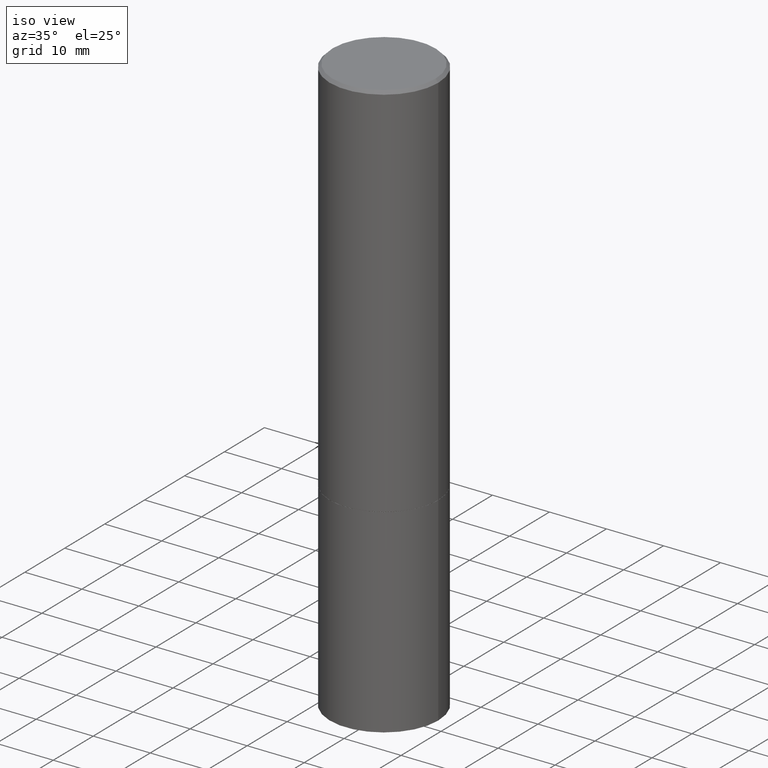
[diagram: clean part render]
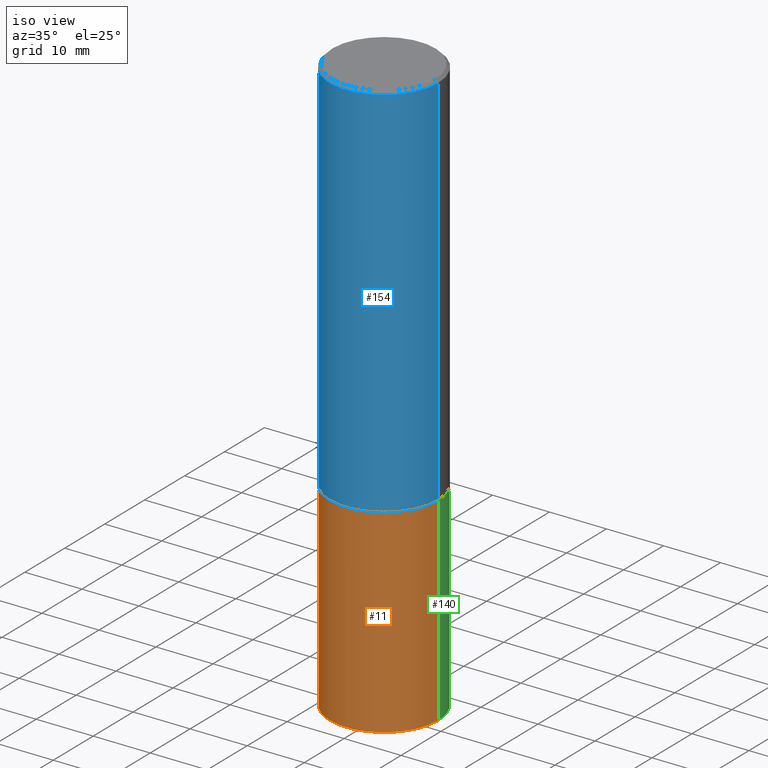
[diagram: same view with three faces highlighted in distinct colors, each labeled with its STEP entity id]
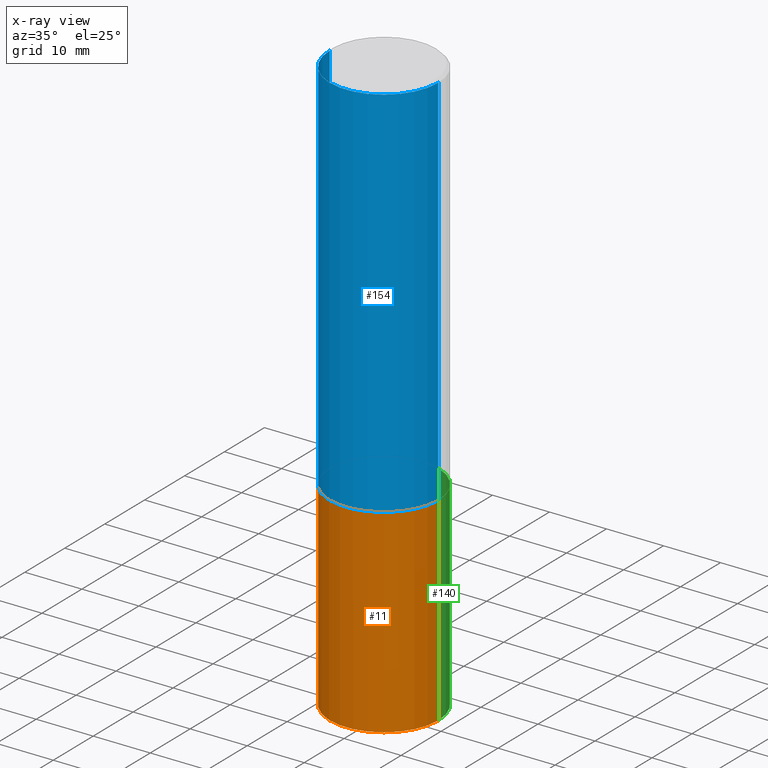
[diagram: x-ray of the same camera — body ghosted, the three highlighted faces saturated]
A machine part, iso view with three faces highlighted in distinct colors.
The next image is the same camera in x-ray (body ghosted, the three faces saturated) — at least one of them is partly hidden behind the body in this view.
Their STEP definitions:

[orange] entity #11 — the highlighted cylindrical surface (partial cylindrical patch) has radius 9.525 mm, axis along (-0, 0, 1).
#2 = ORIENTED_EDGE ( 'NONE', *, *, #313, .T. ) ;
#11 = ADVANCED_FACE ( 'NONE', ( #18 ), #163, .T. ) ;
#14 = CARTESIAN_POINT ( 'NONE',  ( 0.000000000000000000, 0.000000000000000000, 0.000000000000000000 ) ) ;
#18 = FACE_OUTER_BOUND ( 'NONE', #212, .T. ) ;
#37 = ORIENTED_EDGE ( 'NONE', *, *, #283, .T. ) ;
#42 = DIRECTION ( 'NONE',  ( -2.445468806185136597E-29, 3.491481338843145583E-15, 1.000000000000000000 ) ) ;
#47 = LINE ( 'NONE', #111, #277 ) ;
#55 = DIRECTION ( 'NONE',  ( -2.445468806185136877E-29, 3.491481338843145188E-15, 1.000000000000000000 ) ) ;
#63 = AXIS2_PLACEMENT_3D ( 'NONE', #119, #293, #311 ) ;
#82 = CARTESIAN_POINT ( 'NONE',  ( 6.419355616235982445E-29, -9.165138514463255034E-15, -2.624999999999999556 ) ) ;
#83 = EDGE_CURVE ( 'NONE', #319, #208, #47, .T. ) ;
#87 = CARTESIAN_POINT ( 'NONE',  ( 0.3750000000000000555, -1.178374951859560505E-14, -2.624999999999999556 ) ) ;
#93 = VERTEX_POINT ( 'NONE', #87 ) ;
#94 = CARTESIAN_POINT ( 'NONE',  ( -0.3750000000000000555, -8.900996675817542197E-15, -4.000000000000000000 ) ) ;
#111 = CARTESIAN_POINT ( 'NONE',  ( -0.3750000000000000555, 2.664535259100376091E-15, -1.844600658845589598E-29 ) ) ;
#119 = CARTESIAN_POINT ( 'NONE',  ( 9.781875224740546387E-29, -1.396592535537258233E-14, -4.000000000000000000 ) ) ;
#129 = CARTESIAN_POINT ( 'NONE',  ( 0.3750000000000000555, -1.658453635950493392E-14, -4.000000000000000000 ) ) ;
#159 = DIRECTION ( 'NONE',  ( -2.445468806185136877E-29, 3.491481338843145188E-15, 1.000000000000000000 ) ) ;
#163 = CYLINDRICAL_SURFACE ( 'NONE', #238, 0.3750000000000000555 ) ;
#170 = DIRECTION ( 'NONE',  ( 1.000000000000000000, -6.982962677686265922E-15, 4.876176775795935793E-29 ) ) ;
#175 = AXIS2_PLACEMENT_3D ( 'NONE', #82, #199, #234 ) ;
#193 = ORIENTED_EDGE ( 'NONE', *, *, #294, .F. ) ;
#194 = ORIENTED_EDGE ( 'NONE', *, *, #83, .F. ) ;
#196 = CIRCLE ( 'NONE', #175, 0.3750000000000000555 ) ;
#199 = DIRECTION ( 'NONE',  ( -2.445468806185136597E-29, 3.491481338843145583E-15, 1.000000000000000000 ) ) ;
#208 = VERTEX_POINT ( 'NONE', #333 ) ;
#209 = VECTOR ( 'NONE', #159, 39.37007874015748143 ) ;
#212 = EDGE_LOOP ( 'NONE', ( #194, #37, #2, #193 ) ) ;
#234 = DIRECTION ( 'NONE',  ( 1.000000000000000000, -6.982962677686266711E-15, 0.000000000000000000 ) ) ;
#238 = AXIS2_PLACEMENT_3D ( 'NONE', #14, #42, #170 ) ;
#250 = CIRCLE ( 'NONE', #63, 0.3750000000000000555 ) ;
#277 = VECTOR ( 'NONE', #55, 39.37007874015748143 ) ;
#283 = EDGE_CURVE ( 'NONE', #319, #338, #250, .T. ) ;
#293 = DIRECTION ( 'NONE',  ( -2.445468806185136597E-29, 3.491481338843145583E-15, 1.000000000000000000 ) ) ;
#294 = EDGE_CURVE ( 'NONE', #208, #93, #196, .T. ) ;
#297 = LINE ( 'NONE', #340, #209 ) ;
#311 = DIRECTION ( 'NONE',  ( 1.000000000000000000, -6.982962677686266711E-15, 0.000000000000000000 ) ) ;
#313 = EDGE_CURVE ( 'NONE', #338, #93, #297, .T. ) ;
#319 = VERTEX_POINT ( 'NONE', #94 ) ;
#333 = CARTESIAN_POINT ( 'NONE',  ( -0.3750000000000000555, -8.900996675817542197E-15, -2.624999999999999556 ) ) ;
#338 = VERTEX_POINT ( 'NONE', #129 ) ;
#340 = CARTESIAN_POINT ( 'NONE',  ( 0.3750000000000000555, -2.618611004132350016E-15, 1.828566290923476203E-29 ) ) ;

[blue] entity #154 — the highlighted cylindrical surface (partial cylindrical patch) has radius 9.525 mm, axis along (-0, 0, 1).
#6 = VERTEX_POINT ( 'NONE', #248 ) ;
#22 = DIRECTION ( 'NONE',  ( 1.000000000000000000, -6.982962677686266711E-15, 0.000000000000000000 ) ) ;
#29 = EDGE_CURVE ( 'NONE', #322, #237, #172, .T. ) ;
#38 = CIRCLE ( 'NONE', #331, 0.3750000000000000555 ) ;
#51 = VECTOR ( 'NONE', #116, 39.37007874015748143 ) ;
#59 = CARTESIAN_POINT ( 'NONE',  ( -0.3749999999999996114, 2.548781377355483957E-15, -0.02000000000000008715 ) ) ;
#65 = EDGE_CURVE ( 'NONE', #322, #151, #38, .T. ) ;
#72 = CARTESIAN_POINT ( 'NONE',  ( -0.3749999999999999445, -1.951203070850261571E-15, -2.624000000000000110 ) ) ;
#75 = DIRECTION ( 'NONE',  ( 1.000000000000000000, -6.982962677686265922E-15, 4.876176775795935793E-29 ) ) ;
#76 = EDGE_CURVE ( 'NONE', #151, #6, #309, .T. ) ;
#84 = DIRECTION ( 'NONE',  ( -2.445468806185136597E-29, 3.491481338843145583E-15, 1.000000000000000000 ) ) ;
#100 = VECTOR ( 'NONE', #279, 39.37007874015748143 ) ;
#102 = CYLINDRICAL_SURFACE ( 'NONE', #253, 0.3749999999999998335 ) ;
#108 = EDGE_CURVE ( 'NONE', #237, #6, #249, .T. ) ;
#116 = DIRECTION ( 'NONE',  ( -2.445468806185136877E-29, 3.491481338843145188E-15, 1.000000000000000000 ) ) ;
#151 = VERTEX_POINT ( 'NONE', #243 ) ;
#154 = ADVANCED_FACE ( 'NONE', ( #349 ), #102, .T. ) ;
#155 = ORIENTED_EDGE ( 'NONE', *, *, #29, .F. ) ;
#172 = LINE ( 'NONE', #177, #51 ) ;
#177 = CARTESIAN_POINT ( 'NONE',  ( -0.3749999999999998335, 2.664535259100374514E-15, -1.844600658845588757E-29 ) ) ;
#210 = EDGE_LOOP ( 'NONE', ( #155, #276, #245, #306 ) ) ;
#215 = CARTESIAN_POINT ( 'NONE',  ( 0.000000000000000000, 0.000000000000000000, 0.000000000000000000 ) ) ;
#220 = CARTESIAN_POINT ( 'NONE',  ( 4.890937612370294178E-31, -6.982962677686321191E-17, -0.02000000000000008715 ) ) ;
#228 = CARTESIAN_POINT ( 'NONE',  ( 6.416910147429799085E-29, -9.161647033124413605E-15, -2.624000000000000110 ) ) ;
#237 = VERTEX_POINT ( 'NONE', #59 ) ;
#243 = CARTESIAN_POINT ( 'NONE',  ( 0.3750000000000000555, -1.178025803725676520E-14, -2.624000000000000110 ) ) ;
#245 = ORIENTED_EDGE ( 'NONE', *, *, #76, .T. ) ;
#248 = CARTESIAN_POINT ( 'NONE',  ( 0.3749999999999996114, -2.642516375941185268E-15, -0.02000000000000008715 ) ) ;
#249 = CIRCLE ( 'NONE', #353, 0.3749999999999996114 ) ;
#252 = CARTESIAN_POINT ( 'NONE',  ( 0.3749999999999998335, -2.618611004132348439E-15, 1.828566290923475082E-29 ) ) ;
#253 = AXIS2_PLACEMENT_3D ( 'NONE', #215, #327, #75 ) ;
#276 = ORIENTED_EDGE ( 'NONE', *, *, #65, .T. ) ;
#279 = DIRECTION ( 'NONE',  ( -2.445468806185136877E-29, 3.491481338843145188E-15, 1.000000000000000000 ) ) ;
#306 = ORIENTED_EDGE ( 'NONE', *, *, #108, .F. ) ;
#309 = LINE ( 'NONE', #252, #100 ) ;
#322 = VERTEX_POINT ( 'NONE', #72 ) ;
#327 = DIRECTION ( 'NONE',  ( -2.445468806185136597E-29, 3.491481338843145583E-15, 1.000000000000000000 ) ) ;
#331 = AXIS2_PLACEMENT_3D ( 'NONE', #228, #84, #22 ) ;
#332 = DIRECTION ( 'NONE',  ( 1.000000000000000000, -6.982962677686266711E-15, 0.000000000000000000 ) ) ;
#349 = FACE_OUTER_BOUND ( 'NONE', #210, .T. ) ;
#353 = AXIS2_PLACEMENT_3D ( 'NONE', #220, #355, #332 ) ;
#355 = DIRECTION ( 'NONE',  ( -2.445468806185136597E-29, 3.491481338843145583E-15, 1.000000000000000000 ) ) ;

[green] entity #140 — the highlighted cylindrical surface (partial cylindrical patch) has radius 9.525 mm, axis along (-0, 0, 1).
#4 = EDGE_CURVE ( 'NONE', #93, #208, #218, .T. ) ;
#17 = EDGE_CURVE ( 'NONE', #338, #319, #361, .T. ) ;
#43 = ORIENTED_EDGE ( 'NONE', *, *, #17, .T. ) ;
#44 = CARTESIAN_POINT ( 'NONE',  ( 6.419355616235982445E-29, -9.165138514463255034E-15, -2.624999999999999556 ) ) ;
#47 = LINE ( 'NONE', #111, #277 ) ;
#55 = DIRECTION ( 'NONE',  ( -2.445468806185136877E-29, 3.491481338843145188E-15, 1.000000000000000000 ) ) ;
#58 = ORIENTED_EDGE ( 'NONE', *, *, #313, .F. ) ;
#62 = FACE_OUTER_BOUND ( 'NONE', #189, .T. ) ;
#73 = DIRECTION ( 'NONE',  ( 1.000000000000000000, -6.982962677686265922E-15, 4.876176775795935793E-29 ) ) ;
#83 = EDGE_CURVE ( 'NONE', #319, #208, #47, .T. ) ;
#87 = CARTESIAN_POINT ( 'NONE',  ( 0.3750000000000000555, -1.178374951859560505E-14, -2.624999999999999556 ) ) ;
#93 = VERTEX_POINT ( 'NONE', #87 ) ;
#94 = CARTESIAN_POINT ( 'NONE',  ( -0.3750000000000000555, -8.900996675817542197E-15, -4.000000000000000000 ) ) ;
#103 = CARTESIAN_POINT ( 'NONE',  ( 9.781875224740546387E-29, -1.396592535537258233E-14, -4.000000000000000000 ) ) ;
#111 = CARTESIAN_POINT ( 'NONE',  ( -0.3750000000000000555, 2.664535259100376091E-15, -1.844600658845589598E-29 ) ) ;
#129 = CARTESIAN_POINT ( 'NONE',  ( 0.3750000000000000555, -1.658453635950493392E-14, -4.000000000000000000 ) ) ;
#140 = ADVANCED_FACE ( 'NONE', ( #62 ), #161, .T. ) ;
#159 = DIRECTION ( 'NONE',  ( -2.445468806185136877E-29, 3.491481338843145188E-15, 1.000000000000000000 ) ) ;
#161 = CYLINDRICAL_SURFACE ( 'NONE', #242, 0.3750000000000000555 ) ;
#168 = DIRECTION ( 'NONE',  ( 1.000000000000000000, -6.982962677686266711E-15, 0.000000000000000000 ) ) ;
#189 = EDGE_LOOP ( 'NONE', ( #43, #281, #299, #58 ) ) ;
#208 = VERTEX_POINT ( 'NONE', #333 ) ;
#209 = VECTOR ( 'NONE', #159, 39.37007874015748143 ) ;
#213 = AXIS2_PLACEMENT_3D ( 'NONE', #44, #300, #168 ) ;
#216 = DIRECTION ( 'NONE',  ( 1.000000000000000000, -6.982962677686266711E-15, 0.000000000000000000 ) ) ;
#218 = CIRCLE ( 'NONE', #213, 0.3750000000000000555 ) ;
#241 = DIRECTION ( 'NONE',  ( -2.445468806185136597E-29, 3.491481338843145583E-15, 1.000000000000000000 ) ) ;
#242 = AXIS2_PLACEMENT_3D ( 'NONE', #264, #274, #73 ) ;
#264 = CARTESIAN_POINT ( 'NONE',  ( 0.000000000000000000, 0.000000000000000000, 0.000000000000000000 ) ) ;
#270 = AXIS2_PLACEMENT_3D ( 'NONE', #103, #241, #216 ) ;
#274 = DIRECTION ( 'NONE',  ( -2.445468806185136597E-29, 3.491481338843145583E-15, 1.000000000000000000 ) ) ;
#277 = VECTOR ( 'NONE', #55, 39.37007874015748143 ) ;
#281 = ORIENTED_EDGE ( 'NONE', *, *, #83, .T. ) ;
#297 = LINE ( 'NONE', #340, #209 ) ;
#299 = ORIENTED_EDGE ( 'NONE', *, *, #4, .F. ) ;
#300 = DIRECTION ( 'NONE',  ( -2.445468806185136597E-29, 3.491481338843145583E-15, 1.000000000000000000 ) ) ;
#313 = EDGE_CURVE ( 'NONE', #338, #93, #297, .T. ) ;
#319 = VERTEX_POINT ( 'NONE', #94 ) ;
#333 = CARTESIAN_POINT ( 'NONE',  ( -0.3750000000000000555, -8.900996675817542197E-15, -2.624999999999999556 ) ) ;
#338 = VERTEX_POINT ( 'NONE', #129 ) ;
#340 = CARTESIAN_POINT ( 'NONE',  ( 0.3750000000000000555, -2.618611004132350016E-15, 1.828566290923476203E-29 ) ) ;
#361 = CIRCLE ( 'NONE', #270, 0.3750000000000000555 ) ;